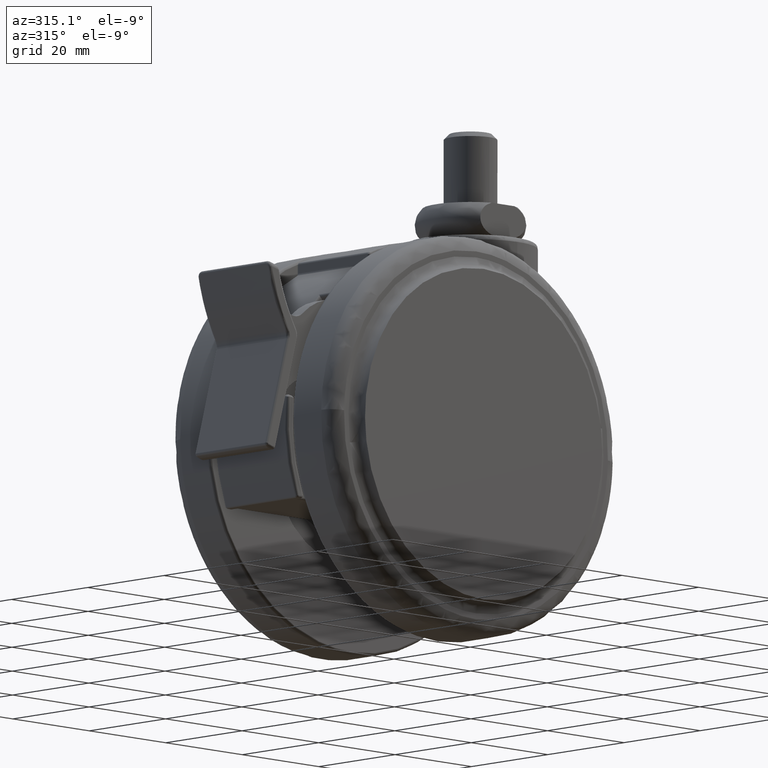
[diagram: clean part render]
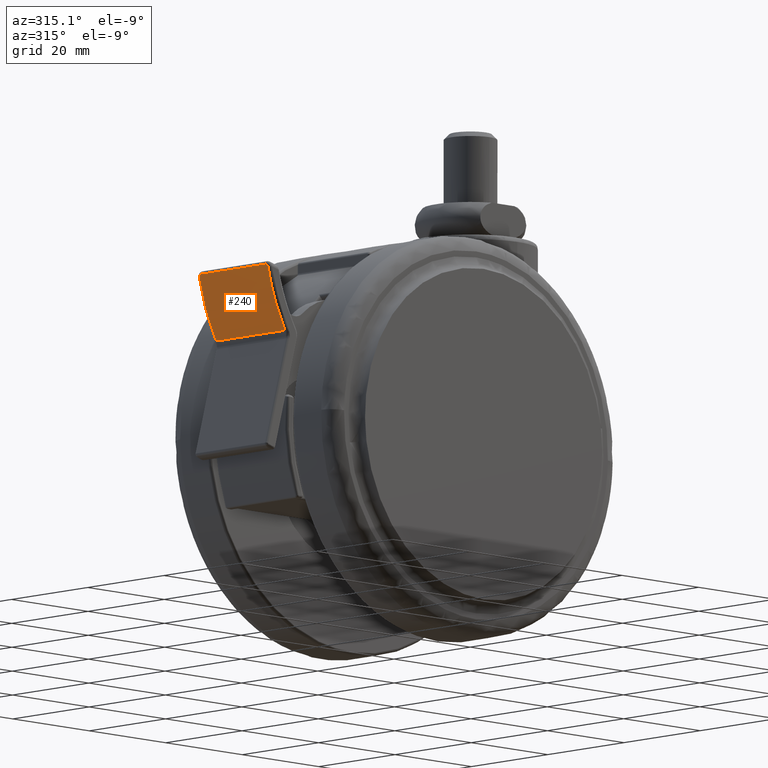
[diagram: same view with one face highlighted and labeled with its STEP entity id]
A machine part, auxiliary view. The second image highlights one B-rep face of the part: STEP entity #240.
In plain terms, the highlighted face is a freeform B-spline surface patch.
Its self-contained STEP definition (entity closure, byte-faithful):
#21=CARTESIAN_POINT('',(-62.021696624464397,-8.500000000000000,-11.614642039958101));
#22=VERTEX_POINT('',#21);
#41=CARTESIAN_POINT('',(-62.021696624464397,8.500000000000000,-11.614642039958101));
#42=VERTEX_POINT('',#41);
#55=CARTESIAN_POINT('',(-62.021696624464397,-8.500000000000000,-11.614642039958101));
#56=CARTESIAN_POINT('',(-62.021696624464397,8.500000000000000,-11.614642039958101));
#57=QUASI_UNIFORM_CURVE('',1,(#55,#56),.UNSPECIFIED.,.F.,.U.);
#58=EDGE_CURVE('',#22,#42,#57,.T.);
#77=CARTESIAN_POINT('',(-57.475068263847803,9.0,-23.569525097336051));
#78=VERTEX_POINT('',#77);
#79=CARTESIAN_POINT('',(-57.475068263847803,-9.000000000000119,-23.569525097336051));
#80=VERTEX_POINT('',#79);
#81=CARTESIAN_POINT('',(-57.475068263847803,9.0,-23.569525097336051));
#82=CARTESIAN_POINT('',(-57.475068263847803,-9.000000000000119,-23.569525097336051));
#83=QUASI_UNIFORM_CURVE('',1,(#81,#82),.UNSPECIFIED.,.F.,.U.);
#84=EDGE_CURVE('',#78,#80,#83,.T.);
#152=CARTESIAN_POINT('',(-57.146955860386768,9.450000000000003,-24.115777685586288));
#153=CARTESIAN_POINT('',(-57.146955860386768,-9.461250000000126,-24.115777685586288));
#154=CARTESIAN_POINT('',(-60.878082059921283,9.450000000000005,-18.020443962507763));
#155=CARTESIAN_POINT('',(-60.878082059921283,-9.461250000000124,-18.020443962507763));
#156=CARTESIAN_POINT('',(-62.139915961672990,9.450000000000003,-10.986087480430591));
#157=CARTESIAN_POINT('',(-62.139915961672990,-9.461250000000124,-10.986087480430591));
#165=(BOUNDED_SURFACE()B_SPLINE_SURFACE(1,2,((#152,#154,#156),(#153,#155,#157)),.UNSPECIFIED.,.F.,.F.,.U.)B_SPLINE_SURFACE_WITH_KNOTS((2,2),(3,3),(0.0,18.911250000000130),(0.0,14.169055684239719),.UNSPECIFIED.)GEOMETRIC_REPRESENTATION_ITEM()RATIONAL_B_SPLINE_SURFACE(((0.997795780078186,0.978712765227298,0.993949806473353),(0.997795780078186,0.978712765227298,0.993949806473353)))REPRESENTATION_ITEM('')SURFACE());
#166=CARTESIAN_POINT('',(-61.908173141166500,9.0,-12.169600497037500));
#167=VERTEX_POINT('',#166);
#168=CARTESIAN_POINT('',(-62.021696624464397,8.500000000000000,-11.614642039958101));
#169=CARTESIAN_POINT('',(-62.021696624464397,8.535291982993652,-11.614642039958101));
#170=CARTESIAN_POINT('',(-62.020892103140383,8.569846688892898,-11.618733167976940));
#171=CARTESIAN_POINT('',(-62.017757042813543,8.637564560021064,-11.634635549934940));
#172=CARTESIAN_POINT('',(-62.015382772550133,8.670996369702397,-11.646667134016250));
#173=CARTESIAN_POINT('',(-62.009332968977823,8.733340104867136,-11.677202175389681));
#174=CARTESIAN_POINT('',(-62.005646268598888,8.762675824336732,-11.695762495561070));
#175=CARTESIAN_POINT('',(-61.996994840042419,8.817547641834823,-11.739090174653469));
#176=CARTESIAN_POINT('',(-61.992162493820267,8.842263842665956,-11.763193285074159));
#177=CARTESIAN_POINT('',(-61.981553916116710,8.886791310796919,-11.815792601799100));
#178=CARTESIAN_POINT('',(-61.975723337887267,8.906699534552383,-11.844553664810309));
#179=CARTESIAN_POINT('',(-61.963519872758518,8.940493400526320,-11.904356426945840));
#180=CARTESIAN_POINT('',(-61.957117690623107,8.954563184635525,-11.935546379618611));
#181=CARTESIAN_POINT('',(-61.943716538852051,8.977295124210190,-12.000386466098330));
#182=CARTESIAN_POINT('',(-61.936746688777731,8.985848384834332,-12.033891457762920));
#183=CARTESIAN_POINT('',(-61.922655093922700,8.997152942565077,-12.101163414480750));
#184=CARTESIAN_POINT('',(-61.915480688321033,9.0,-12.135186029013891));
#185=CARTESIAN_POINT('',(-61.908173141166500,9.0,-12.169600497037500));
#186=B_SPLINE_CURVE_WITH_KNOTS('',3,(#168,#169,#170,#171,#172,#173,#174,#175,#176,#177,#178,#179,#180,#181,#182,#183,#184,#185),.UNSPECIFIED.,.F.,.U.,(4,2,2,2,2,2,2,2,4),(0.0,0.125000000000000,0.250000000000000,0.375000000000000,0.500000000000000,0.625000000000000,0.750000000000000,0.875000000000000,1.0),.UNSPECIFIED.);
#187=EDGE_CURVE('',#42,#167,#186,.T.);
#188=ORIENTED_EDGE('',*,*,#187,.T.);
#189=CARTESIAN_POINT('',(-61.908173141166493,9.0,-12.169600497037511));
#190=CARTESIAN_POINT('',(-60.621097217740896,9.0,-18.231009650346493));
#191=CARTESIAN_POINT('',(-57.475068263847810,9.0,-23.569525097336051));
#199=(BOUNDED_CURVE()B_SPLINE_CURVE(2,(#189,#190,#191),.UNSPECIFIED.,.F.,.U.)CURVE()GEOMETRIC_REPRESENTATION_ITEM()QUASI_UNIFORM_CURVE()RATIONAL_B_SPLINE_CURVE((1.0,0.986963966182467,1.0))REPRESENTATION_ITEM(''));
#200=EDGE_CURVE('',#167,#78,#199,.T.);
#201=ORIENTED_EDGE('',*,*,#200,.T.);
#202=ORIENTED_EDGE('',*,*,#84,.T.);
#203=CARTESIAN_POINT('',(-61.908173141166500,-9.000000000000119,-12.169600497037500));
#204=VERTEX_POINT('',#203);
#205=CARTESIAN_POINT('',(-57.475068263847810,-9.000000000000119,-23.569525097336051));
#206=CARTESIAN_POINT('',(-60.621097217740889,-9.000000000000119,-18.231009650346525));
#207=CARTESIAN_POINT('',(-61.908173141166493,-9.000000000000119,-12.169600497037520));
#215=(BOUNDED_CURVE()B_SPLINE_CURVE(2,(#205,#206,#207),.UNSPECIFIED.,.F.,.U.)CURVE()GEOMETRIC_REPRESENTATION_ITEM()QUASI_UNIFORM_CURVE()RATIONAL_B_SPLINE_CURVE((1.0,0.986963966182467,1.0))REPRESENTATION_ITEM(''));
#216=EDGE_CURVE('',#80,#204,#215,.T.);
#217=ORIENTED_EDGE('',*,*,#216,.T.);
#218=CARTESIAN_POINT('',(-61.908173141166500,-9.0,-12.169600497037500));
#219=CARTESIAN_POINT('',(-61.922811047192873,-8.999999999999998,-12.100664130535341));
#220=CARTESIAN_POINT('',(-61.936875049256912,-8.988872321851185,-12.033486470654660));
#221=CARTESIAN_POINT('',(-61.963873646754223,-8.943130986707301,-11.902860214075460));
#222=CARTESIAN_POINT('',(-61.976033087122559,-8.909876963103288,-11.843163114830331));
#223=CARTESIAN_POINT('',(-61.992156747803882,-8.842330984367528,-11.763223156117609));
#224=CARTESIAN_POINT('',(-61.996977166079773,-8.817589273215708,-11.739177530034841));
#225=CARTESIAN_POINT('',(-62.003377077881687,-8.777102490677979,-11.707127513944860));
#226=CARTESIAN_POINT('',(-62.005371358830587,-8.763038998676462,-11.697116506987760));
#227=CARTESIAN_POINT('',(-62.009070057540733,-8.733712050054837,-11.678515904240500));
#228=CARTESIAN_POINT('',(-62.010784819466870,-8.718336287242638,-11.669874042386830));
#229=CARTESIAN_POINT('',(-62.015374647489622,-8.671163083277278,-11.646708612972869));
#230=CARTESIAN_POINT('',(-62.017697978622273,-8.638514667575500,-11.634934894603489));
#231=CARTESIAN_POINT('',(-62.020863962843883,-8.570771325809623,-11.618876155274370));
#232=CARTESIAN_POINT('',(-62.021696624464411,-8.535388790540594,-11.614642039958101));
#233=CARTESIAN_POINT('',(-62.021696624464397,-8.500000000000000,-11.614642039958101));
#234=B_SPLINE_CURVE_WITH_KNOTS('',3,(#218,#219,#220,#221,#222,#223,#224,#225,#226,#227,#228,#229,#230,#231,#232,#233),.UNSPECIFIED.,.F.,.U.,(4,2,2,2,2,2,2,4),(0.0,0.250000000000002,0.500000000000005,0.625000000000004,0.687500000000002,0.749999999999999,0.875000000000000,1.0),.UNSPECIFIED.);
#235=EDGE_CURVE('',#204,#22,#234,.T.);
#236=ORIENTED_EDGE('',*,*,#235,.T.);
#237=ORIENTED_EDGE('',*,*,#58,.T.);
#238=EDGE_LOOP('',(#188,#201,#202,#217,#236,#237));
#239=FACE_OUTER_BOUND('',#238,.T.);
#240=ADVANCED_FACE('',(#239),#165,.T.);